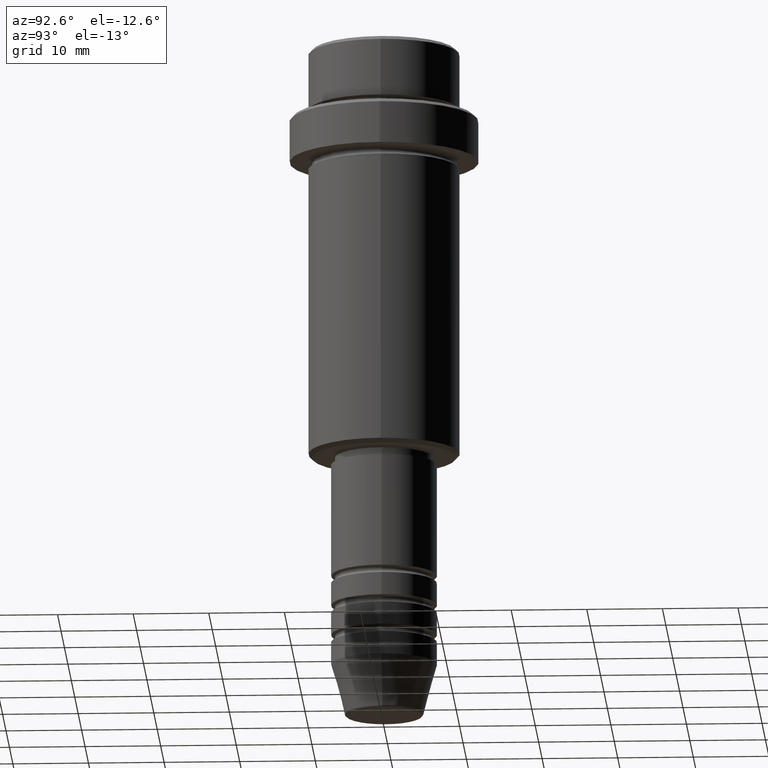
[diagram: clean part render]
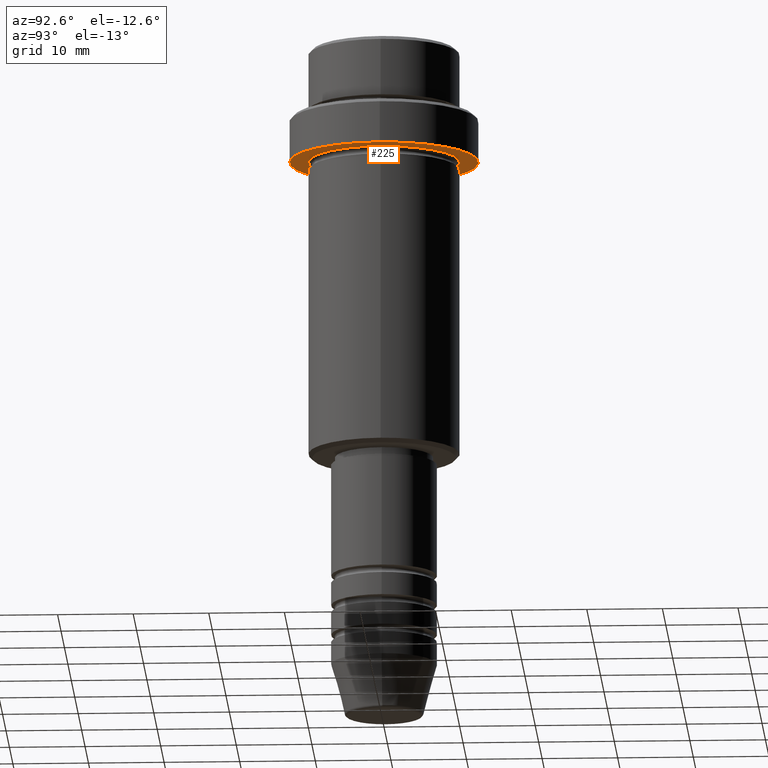
[diagram: same view with one face highlighted and labeled with its STEP entity id]
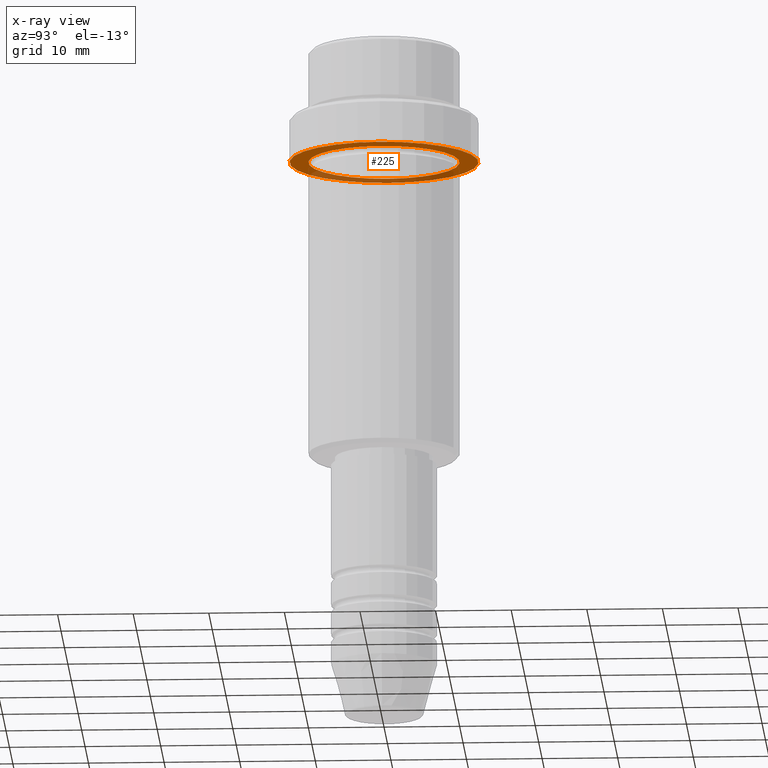
[diagram: x-ray of the same camera — body ghosted, the highlighted face saturated]
A machine part, auxiliary view. The second image highlights one B-rep face of the part: STEP entity #225.
The next image is the same camera in x-ray: the body ghosted, the highlighted face saturated — about 31% of this face is hidden behind the body in this view.
In plain terms, the highlighted planar face has unit normal (0, 0, -1).
Its self-contained STEP definition (entity closure, byte-faithful):
#159 = VERTEX_POINT ( 'NONE', #1191 ) ;
#160 = PLANE ( 'NONE',  #885 ) ;
#168 = AXIS2_PLACEMENT_3D ( 'NONE', #807, #1265, #1243 ) ;
#177 = VERTEX_POINT ( 'NONE', #214 ) ;
#185 = DIRECTION ( 'NONE',  ( 1.000000000000000000, 0.000000000000000000, 0.000000000000000000 ) ) ;
#214 = CARTESIAN_POINT ( 'NONE',  ( 12.50000000000000000, 0.000000000000000000, -15.00000000000000000 ) ) ;
#225 = ADVANCED_FACE ( 'NONE', ( #792, #931 ), #160, .T. ) ;
#230 = AXIS2_PLACEMENT_3D ( 'NONE', #1262, #1155, #185 ) ;
#326 = CARTESIAN_POINT ( 'NONE',  ( 0.000000000000000000, 0.000000000000000000, -15.00000000000000000 ) ) ;
#353 = EDGE_LOOP ( 'NONE', ( #1109, #566 ) ) ;
#470 = ORIENTED_EDGE ( 'NONE', *, *, #1062, .T. ) ;
#528 = CARTESIAN_POINT ( 'NONE',  ( 9.999999999999992895, 1.224646799147352468E-15, -15.00000000000000000 ) ) ;
#536 = VERTEX_POINT ( 'NONE', #528 ) ;
#540 = CIRCLE ( 'NONE', #664, 12.50000000000000000 ) ;
#565 = CIRCLE ( 'NONE', #733, 9.999999999999992895 ) ;
#566 = ORIENTED_EDGE ( 'NONE', *, *, #1120, .F. ) ;
#659 = DIRECTION ( 'NONE',  ( -0.000000000000000000, -0.000000000000000000, 1.000000000000000000 ) ) ;
#664 = AXIS2_PLACEMENT_3D ( 'NONE', #833, #835, #719 ) ;
#704 = DIRECTION ( 'NONE',  ( -1.000000000000000000, 0.000000000000000000, 0.000000000000000000 ) ) ;
#718 = DIRECTION ( 'NONE',  ( 0.000000000000000000, 0.000000000000000000, -1.000000000000000000 ) ) ;
#719 = DIRECTION ( 'NONE',  ( 1.000000000000000000, 0.000000000000000000, 0.000000000000000000 ) ) ;
#733 = AXIS2_PLACEMENT_3D ( 'NONE', #326, #659, #704 ) ;
#792 = FACE_BOUND ( 'NONE', #997, .T. ) ;
#807 = CARTESIAN_POINT ( 'NONE',  ( 0.000000000000000000, 0.000000000000000000, -15.00000000000000000 ) ) ;
#818 = EDGE_CURVE ( 'NONE', #159, #536, #1038, .T. ) ;
#833 = CARTESIAN_POINT ( 'NONE',  ( 0.000000000000000000, 0.000000000000000000, -15.00000000000000000 ) ) ;
#835 = DIRECTION ( 'NONE',  ( -0.000000000000000000, -0.000000000000000000, 1.000000000000000000 ) ) ;
#885 = AXIS2_PLACEMENT_3D ( 'NONE', #1226, #718, #1019 ) ;
#931 = FACE_OUTER_BOUND ( 'NONE', #353, .T. ) ;
#997 = EDGE_LOOP ( 'NONE', ( #1186, #470 ) ) ;
#1019 = DIRECTION ( 'NONE',  ( -1.000000000000000000, 0.000000000000000000, -0.000000000000000000 ) ) ;
#1038 = CIRCLE ( 'NONE', #168, 9.999999999999992895 ) ;
#1062 = EDGE_CURVE ( 'NONE', #536, #159, #565, .T. ) ;
#1107 = EDGE_CURVE ( 'NONE', #177, #1294, #1416, .T. ) ;
#1109 = ORIENTED_EDGE ( 'NONE', *, *, #1107, .F. ) ;
#1120 = EDGE_CURVE ( 'NONE', #1294, #177, #540, .T. ) ;
#1151 = CARTESIAN_POINT ( 'NONE',  ( -12.50000000000000000, 1.530808498934191521E-15, -15.00000000000000000 ) ) ;
#1155 = DIRECTION ( 'NONE',  ( -0.000000000000000000, -0.000000000000000000, 1.000000000000000000 ) ) ;
#1186 = ORIENTED_EDGE ( 'NONE', *, *, #818, .T. ) ;
#1191 = CARTESIAN_POINT ( 'NONE',  ( -9.999999999999992895, 0.000000000000000000, -15.00000000000000000 ) ) ;
#1226 = CARTESIAN_POINT ( 'NONE',  ( 0.000000000000000000, 12.50000000000000000, -15.00000000000000000 ) ) ;
#1243 = DIRECTION ( 'NONE',  ( -1.000000000000000000, 0.000000000000000000, 0.000000000000000000 ) ) ;
#1262 = CARTESIAN_POINT ( 'NONE',  ( 0.000000000000000000, 0.000000000000000000, -15.00000000000000000 ) ) ;
#1265 = DIRECTION ( 'NONE',  ( -0.000000000000000000, -0.000000000000000000, 1.000000000000000000 ) ) ;
#1294 = VERTEX_POINT ( 'NONE', #1151 ) ;
#1416 = CIRCLE ( 'NONE', #230, 12.50000000000000000 ) ;